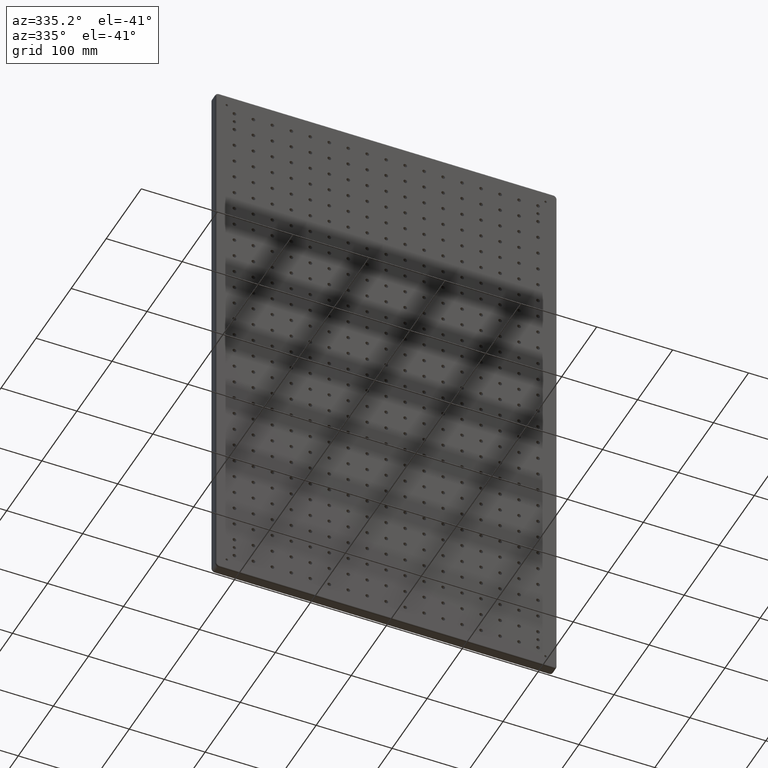
[diagram: clean part render]
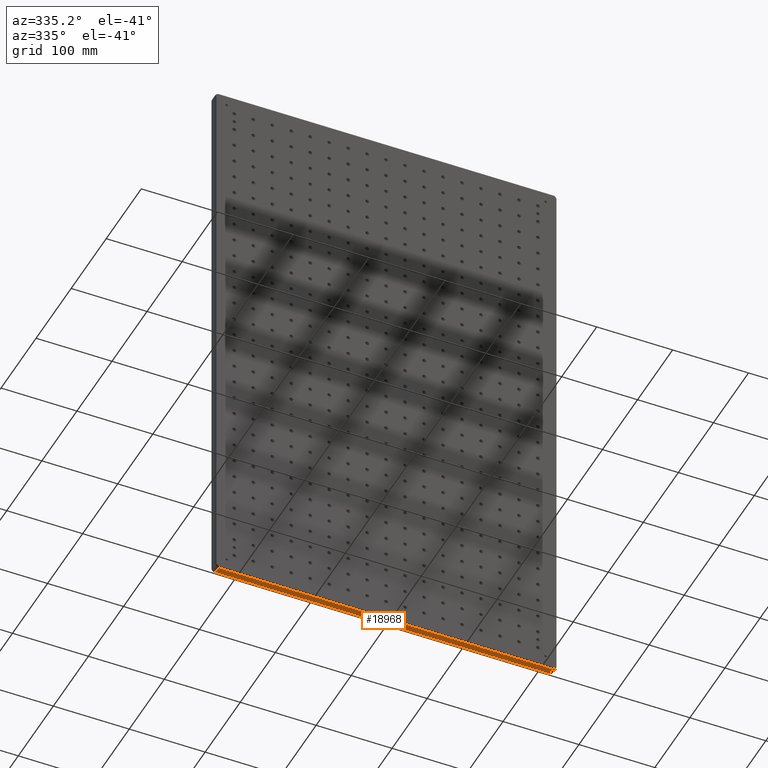
[diagram: same view with one face highlighted and labeled with its STEP entity id]
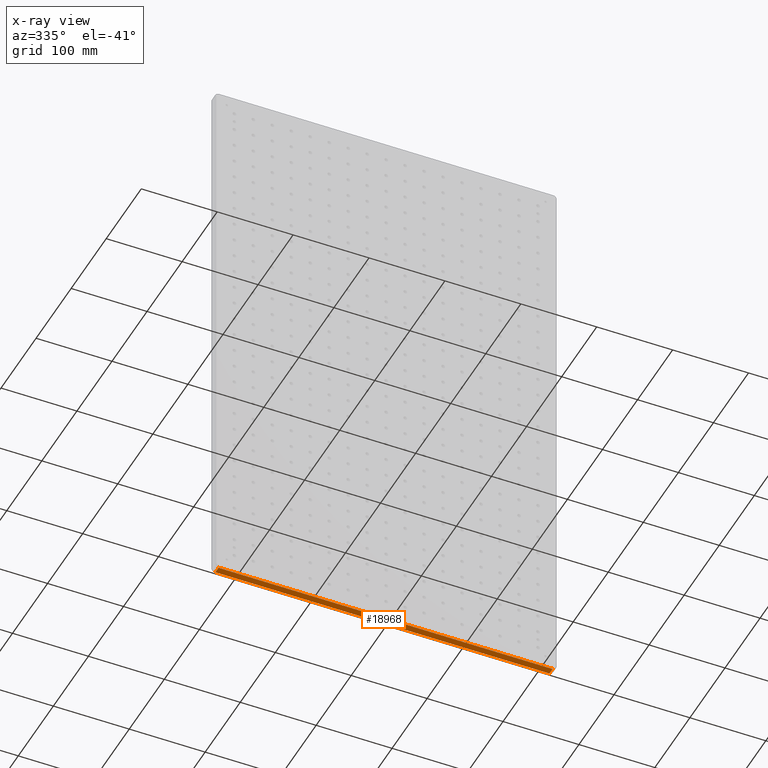
[diagram: x-ray of the same camera — body ghosted, the highlighted face saturated]
A machine part, auxiliary view. The second image highlights one B-rep face of the part: STEP entity #18968.
The next image is the same camera in x-ray: the body ghosted, the highlighted face saturated — about 0% of this face is hidden behind the body in this view.
In plain terms, the highlighted planar face has unit normal (0, 0, 1).
Its self-contained STEP definition (entity closure, byte-faithful):
#128 = CARTESIAN_POINT ( 'NONE',  ( -220.0000000000000000, 2.000000000000000000, -375.0000000000000000 ) ) ;
#2672 = LINE ( 'NONE', #2861, #35133 ) ;
#2861 = CARTESIAN_POINT ( 'NONE',  ( 220.0000000000000000, 11.00000000000000000, -375.0000000000000000 ) ) ;
#3147 = CARTESIAN_POINT ( 'NONE',  ( 220.0000000000000000, 2.000000000000001776, -375.0000000000000000 ) ) ;
#4264 = VECTOR ( 'NONE', #10520, 1000.000000000000000 ) ;
#4558 = LINE ( 'NONE', #16306, #4264 ) ;
#6051 = VERTEX_POINT ( 'NONE', #20547 ) ;
#6508 = ORIENTED_EDGE ( 'NONE', *, *, #29130, .T. ) ;
#6538 = VERTEX_POINT ( 'NONE', #14539 ) ;
#6881 = EDGE_CURVE ( 'NONE', #6538, #6051, #29672, .T. ) ;
#8596 = VECTOR ( 'NONE', #14211, 1000.000000000000000 ) ;
#10520 = DIRECTION ( 'NONE',  ( -0.000000000000000000, -1.000000000000000000, -0.000000000000000000 ) ) ;
#11217 = VERTEX_POINT ( 'NONE', #19045 ) ;
#11258 = ORIENTED_EDGE ( 'NONE', *, *, #23937, .T. ) ;
#11750 = DIRECTION ( 'NONE',  ( -0.000000000000000000, -1.000000000000000000, -0.000000000000000000 ) ) ;
#13447 = FACE_OUTER_BOUND ( 'NONE', #27056, .T. ) ;
#14211 = DIRECTION ( 'NONE',  ( -1.000000000000000000, 0.000000000000000000, 0.000000000000000000 ) ) ;
#14539 = CARTESIAN_POINT ( 'NONE',  ( -220.0000000000000000, 11.00000000000000000, -375.0000000000000000 ) ) ;
#14574 = AXIS2_PLACEMENT_3D ( 'NONE', #36781, #25394, #37547 ) ;
#16306 = CARTESIAN_POINT ( 'NONE',  ( 220.0000000000000000, 13.00000000000000000, -375.0000000000000000 ) ) ;
#18968 = ADVANCED_FACE ( 'NONE', ( #13447 ), #25771, .F. ) ;
#19045 = CARTESIAN_POINT ( 'NONE',  ( 220.0000000000000000, 11.00000000000000000, -375.0000000000000000 ) ) ;
#19793 = LINE ( 'NONE', #128, #8596 ) ;
#20547 = CARTESIAN_POINT ( 'NONE',  ( -220.0000000000000000, 2.000000000000003553, -375.0000000000000000 ) ) ;
#21071 = ORIENTED_EDGE ( 'NONE', *, *, #6881, .F. ) ;
#23667 = DIRECTION ( 'NONE',  ( 1.000000000000000000, -0.000000000000000000, -0.000000000000000000 ) ) ;
#23937 = EDGE_CURVE ( 'NONE', #32688, #6051, #19793, .T. ) ;
#25394 = DIRECTION ( 'NONE',  ( 0.000000000000000000, 0.000000000000000000, 1.000000000000000000 ) ) ;
#25771 = PLANE ( 'NONE',  #14574 ) ;
#26874 = ORIENTED_EDGE ( 'NONE', *, *, #37303, .T. ) ;
#27056 = EDGE_LOOP ( 'NONE', ( #26874, #11258, #21071, #6508 ) ) ;
#29130 = EDGE_CURVE ( 'NONE', #6538, #11217, #2672, .T. ) ;
#29672 = LINE ( 'NONE', #35461, #38170 ) ;
#32688 = VERTEX_POINT ( 'NONE', #3147 ) ;
#35133 = VECTOR ( 'NONE', #23667, 1000.000000000000000 ) ;
#35461 = CARTESIAN_POINT ( 'NONE',  ( -220.0000000000000000, 13.00000000000000000, -375.0000000000000000 ) ) ;
#36781 = CARTESIAN_POINT ( 'NONE',  ( -220.0000000000000000, 13.00000000000000000, -375.0000000000000000 ) ) ;
#37303 = EDGE_CURVE ( 'NONE', #11217, #32688, #4558, .T. ) ;
#37547 = DIRECTION ( 'NONE',  ( 1.000000000000000000, 0.000000000000000000, -0.000000000000000000 ) ) ;
#38170 = VECTOR ( 'NONE', #11750, 1000.000000000000000 ) ;